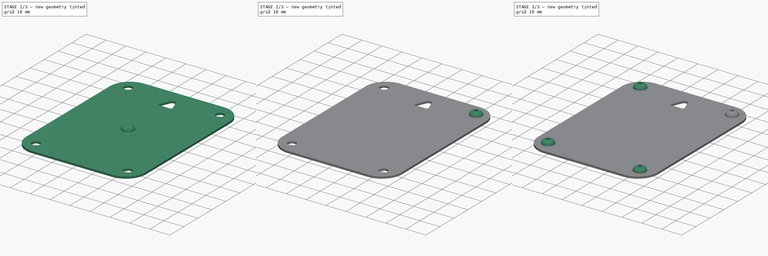
[diagram: build sequence overview — one tinted view per stage of 3, left to right]
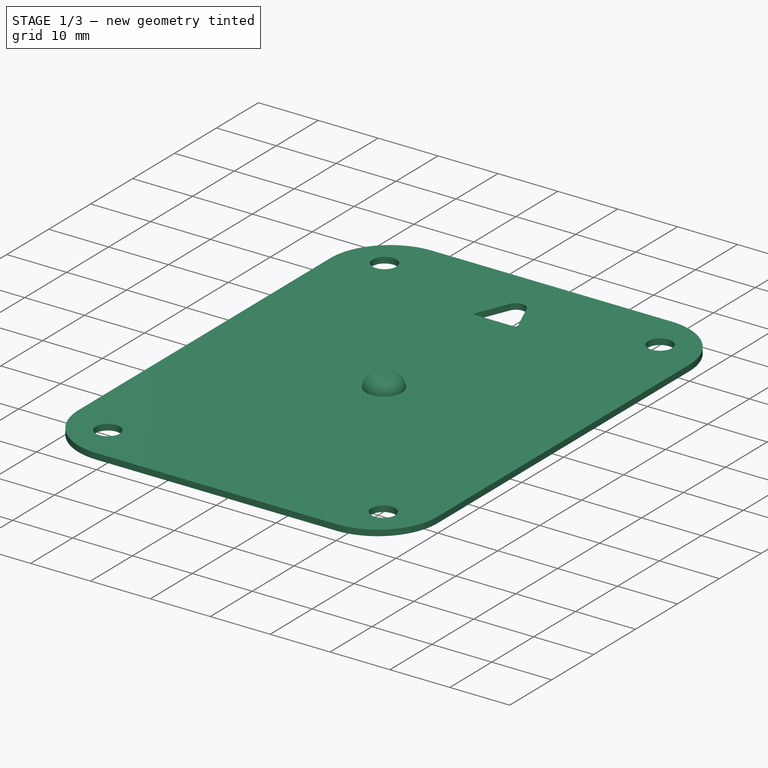
[diagram: stage 1 of 3 — iso view after this stage's code; geometry added in this stage tinted green]
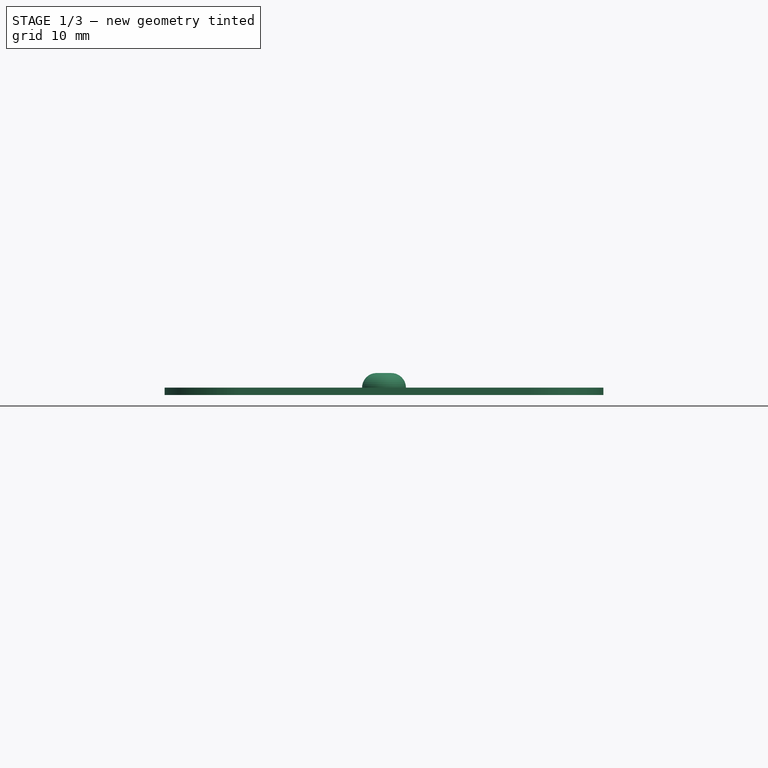
[diagram: stage 1 of 3 — front view after this stage's code; geometry added in this stage tinted green]
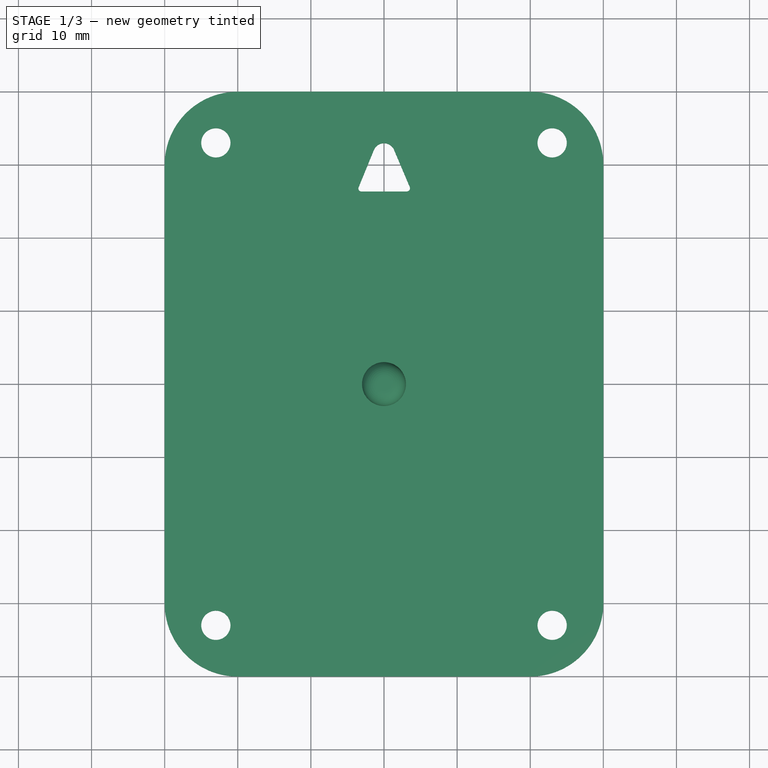
[diagram: stage 1 of 3 — top view after this stage's code; geometry added in this stage tinted green]
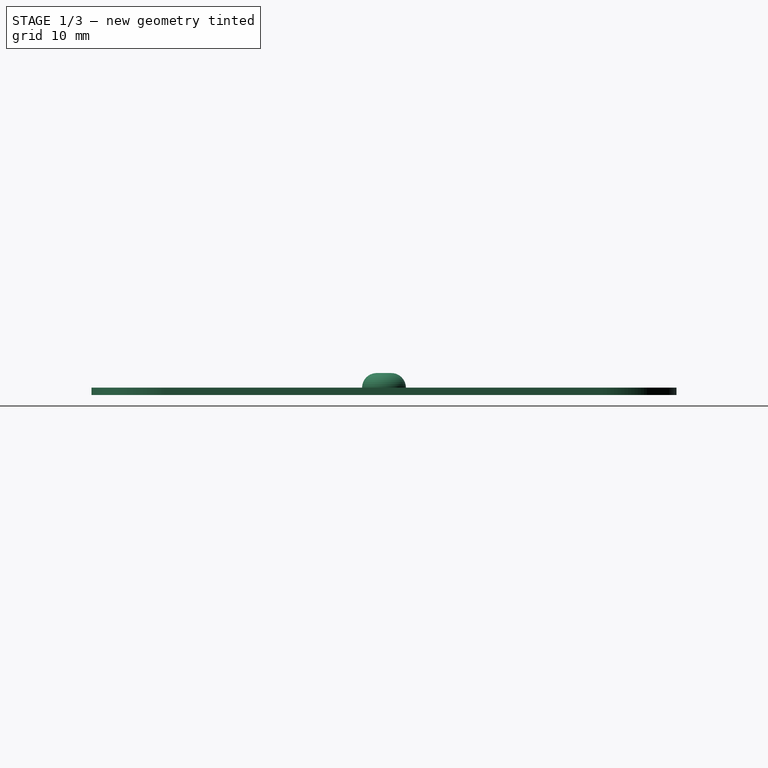
[diagram: stage 1 of 3 — right view after this stage's code; geometry added in this stage tinted green]
FCSTD DOCUMENT  (FreeCAD 0.16R)
Label: nexa-box
License: All rights reserved
LicenseURL: http://en.wikipedia.org/wiki/All_rights_reserved
objects: Sketcher::SketchObject×9, Part::FeaturePython×4, Part::Sweep×2, PartDesign::Pocket×2, App::DocumentObjectGroup×2, Part::Feature×1, PartDesign::Pad×1, Part::Revolution×1
note: 23 computed .brp shape members not serialized (recipe doc carries the construction recipe); baked Part::Feature solids carry a one-line shape summary decoded from their .brp

FEATURE [Part::Feature] Part__Feature  label="PCB"
  Placement = pos=(0,0,2) rot=(0,0,1;0rad)
  shape: bbox 50 x 70 x 1.6 mm, 442 faces (baked)
FEATURE [Sketcher::SketchObject] Sketch
  Placement = pos=(0,0,0) rot=(1,0,0;1.5708rad)
  sketch-geometry (3):
    g0: LineSegment StartX=-30 StartY=0 StartZ=0 EndX=-22.3817 EndY=23 EndZ=0
    g1: ArcOfCircle CenterX=-12.8889 CenterY=19.8557 CenterZ=0 NormalX=0 NormalY=0 NormalZ=1 Radius=10 StartAngle=1.60513 EndAngle=2.82173
    g2: LineSegment StartX=-13.2322 StartY=29.8498 StartZ=0 EndX=-10.9844 EndY=29.8498 EndZ=0
  constraints (6):
    c: Tangent(g0,g1) = 1.5708
    c: Radius(g1) = 10
    c: DistanceX(g0,g-1) = 30  'X'
    c: DistanceY(g0) = 23  'Constraint10'
    c: Coincident(g2,g1)  'Constraint7'
    c: Horizontal(g2)  'Constraint6'
FEATURE [Sketcher::SketchObject] Sketch001
  expr: Constraints[12] = Sketch.Constraints.X
  sketch-geometry (8):
    g0: LineSegment StartX=-5.35442 StartY=39.6004 StartZ=0 EndX=5.35442 EndY=39.6004 EndZ=0
    g1: LineSegment StartX=30 StartY=14.9548 StartZ=0 EndX=30 EndY=-14.9548 EndZ=0
    g2: LineSegment StartX=5.35442 StartY=-39.6004 StartZ=0 EndX=-5.35442 EndY=-39.6004 EndZ=0
    g3: LineSegment StartX=-30 StartY=-14.9548 StartZ=0 EndX=-30 EndY=14.9548 EndZ=0
    g4: ArcOfCircle CenterX=-5.35442 CenterY=14.9548 CenterZ=0 NormalX=0 NormalY=0 NormalZ=1 Radius=24.6456 StartAngle=1.5708 EndAngle=3.14159
    g5: ArcOfCircle CenterX=5.35442 CenterY=14.9548 CenterZ=0 NormalX=0 NormalY=0 NormalZ=1 Radius=24.6456 StartAngle=0 EndAngle=1.5708
    g6: ArcOfCircle CenterX=5.35442 CenterY=-14.9548 CenterZ=0 NormalX=0 NormalY=0 NormalZ=1 Radius=24.6456 StartAngle=4.71239 EndAngle=6.28319
    g7: ArcOfCircle CenterX=-5.35442 CenterY=-14.9548 CenterZ=0 NormalX=0 NormalY=0 NormalZ=1 Radius=24.6456 StartAngle=3.14159 EndAngle=4.71239
  constraints (18):
    c: Horizontal(g0)
    c: Horizontal(g2)
    c: Vertical(g1)
    c: Vertical(g3)
    c: Tangent(g0,g4) = 1.5708
    c: Tangent(g3,g4) = 1.5708
    c: Tangent(g0,g5) = 1.5708
    c: Tangent(g1,g5) = 1.5708
    c: Tangent(g1,g6) = 1.5708
    c: Tangent(g2,g6) = 1.5708
    c: Tangent(g2,g7) = 1.5708
    c: Tangent(g3,g7) = 1.5708
    c: DistanceX(g3,g-1) = 30
    c: Equal(g5,g4)
    c: Equal(g4,g7)
    c: Equal(g7,g6)
    c: Symmetric(g0,g0,g-2)
    c: Symmetric(g3,g3,g-1)
FEATURE [Part::Sweep] Sweep
  Frenet = true
  Sections = -> [Sketch]
  Solid = true
  Spine = -> Sketch001
  Transition = 1
FEATURE [Sketcher::SketchObject] Sketch002  label="BottomOutlineSketch"
  sketch-geometry (8):
    g0: LineSegment StartX=-20 StartY=40 StartZ=0 EndX=20 EndY=40 EndZ=0
    g1: LineSegment StartX=30 StartY=30 StartZ=0 EndX=30 EndY=-30 EndZ=0
    g2: LineSegment StartX=20 StartY=-40 StartZ=0 EndX=-20 EndY=-40 EndZ=0
    g3: LineSegment StartX=-30 StartY=-30 StartZ=0 EndX=-30 EndY=30 EndZ=0
    g4: ArcOfCircle CenterX=-20 CenterY=30 CenterZ=0 NormalX=0 NormalY=0 NormalZ=1 Radius=10 StartAngle=1.5708 EndAngle=3.14159
    g5: ArcOfCircle CenterX=20 CenterY=30 CenterZ=0 NormalX=0 NormalY=0 NormalZ=1 Radius=10 StartAngle=0 EndAngle=1.5708
    g6: ArcOfCircle CenterX=20 CenterY=-30 CenterZ=0 NormalX=0 NormalY=0 NormalZ=1 Radius=10 StartAngle=4.71239 EndAngle=6.28319
    g7: ArcOfCircle CenterX=-20 CenterY=-30 CenterZ=0 NormalX=0 NormalY=0 NormalZ=1 Radius=10 StartAngle=3.14159 EndAngle=4.71239
  constraints (20):
    c: Horizontal(g0)
    c: Horizontal(g2)
    c: Vertical(g1)
    c: Vertical(g3)
    c: Tangent(g0,g4) = 1.5708
    c: Tangent(g3,g4) = 1.5708
    c: Tangent(g0,g5) = 1.5708
    c: Tangent(g1,g5) = 1.5708
    c: Tangent(g1,g6) = 1.5708
    c: Tangent(g2,g6) = 1.5708
    c: Tangent(g2,g7) = 1.5708
    c: Tangent(g3,g7) = 1.5708
    c: Symmetric(g0,g0,g-2)
    c: Symmetric(g1,g1,g-1)
    c: Equal(g7,g6)
    c: Equal(g6,g5)
    c: Equal(g5,g4)
    c: DistanceX(g3,g-1) = 30  'XHalf'
    c: DistanceY(g-1,g0) = 40  'YHalf'
    c: Radius(g4) = 10  'CornerR'
FEATURE [PartDesign::Pad] Pad
  Length = 1
  Length2 = 100
  Reversed = true
  Sketch = -> Sketch002
  Type = 0
FEATURE [Sketcher::SketchObject] Sketch003
  Placement = pos=(0,0,0) rot=(1,0,0;1.5708rad)
  sketch-geometry (8):
    g0: ArcOfCircle CenterX=-1 CenterY=-1.72953 CenterZ=0 NormalX=0 NormalY=0 NormalZ=1 Radius=3.72953 StartAngle=1.5708 EndAngle=2.65938
    g1: ArcOfCircle CenterX=1 CenterY=-1.72953 CenterZ=0 NormalX=0 NormalY=0 NormalZ=1 Radius=3.72953 StartAngle=0.482212 EndAngle=1.5708
    g2: LineSegment StartX=-1 StartY=2 StartZ=0 EndX=1 EndY=2 EndZ=0
    g3: LineSegment StartX=-4.30426 StartY=0 StartZ=0 EndX=-2 EndY=0 EndZ=0
    g4: LineSegment StartX=-2 StartY=0 StartZ=0 EndX=-1 EndY=1 EndZ=0
    g5: LineSegment StartX=-1 StartY=1 StartZ=0 EndX=1 EndY=1 EndZ=0
    g6: LineSegment StartX=1 StartY=1 StartZ=0 EndX=2 EndY=0 EndZ=0
    g7: LineSegment StartX=2 StartY=0 StartZ=0 EndX=4.30426 EndY=0 EndZ=0
  constraints (25):
    c: PointOnObject(g0,g-1)
    c: Horizontal(g2)
    c: Equal(g0,g1)
    c: DistanceY(g0,g0) = 2
    c: Coincident(g0,g3)
    c: Coincident(g3,g4)
    c: Coincident(g4,g5)
    c: Horizontal(g5)
    c: Coincident(g5,g6)
    c: Coincident(g6,g7)
    c: Coincident(g7,g1)
    c: Horizontal(g7)
    c: Horizontal(g3)
    c: Equal(g4,g6)
    c: Angle(g4,g6) = 1.5708
    c: PointOnObject(g1,g-1)
    c: DistanceX(g5,g5) = 2
    c: Equal(g2,g5)
    c: Equal(g3,g7)
    c: DistanceY(g3,g4) = 1
    c: Symmetric(g4,g5,g-2)
    c: Tangent(g0,g2) = 1.5708
    c: Tangent(g1,g2) = 1.5708
    c: Symmetric(g0,g1,g-2)
    c: DistanceX(g3,g6) = 4  'HoleOpening'
FEATURE [Sketcher::SketchObject] Sketch004  label="MountingPadOutline"
  Placement = pos=(0,0,0) rot=(1,0,0;1.5708rad)
  sketch-geometry (6):
    g0: ArcOfCircle CenterX=-1 CenterY=0 CenterZ=0 NormalX=0 NormalY=0 NormalZ=1 Radius=2 StartAngle=1.5708 EndAngle=3.14159
    g1: LineSegment StartX=-1 StartY=2 StartZ=0 EndX=0 EndY=2 EndZ=0
    g2: LineSegment StartX=-3 StartY=0 StartZ=0 EndX=-2 EndY=0 EndZ=0
    g3: LineSegment StartX=-2 StartY=0 StartZ=0 EndX=-1 EndY=1 EndZ=0
    g4: LineSegment StartX=-1 StartY=1 StartZ=0 EndX=0 EndY=1 EndZ=0
    g5: LineSegment StartX=0 StartY=2 StartZ=0 EndX=0 EndY=1 EndZ=0
  constraints (19):
    c: PointOnObject(g0,g-1)
    c: Horizontal(g1)
    c: DistanceY(g0,g0) = 2
    c: Coincident(g0,g2)
    c: Coincident(g2,g3)
    c: Coincident(g3,g4)
    c: Horizontal(g4)
    c: Horizontal(g2)
    c: DistanceX(g4,g4) = 1
    c: Equal(g1,g4)
    c: DistanceY(g2,g3) = 1
    c: Tangent(g0,g1) = 1.5708
    c: PointOnObject(g4,g-2)
    c: PointOnObject(g1,g-2)
    c: Coincident(g5,g1)
    c: Coincident(g5,g4)
    c: Angle(g3,g-2) = 0.785398
    c: DistanceX(g2,g-1) = 2  'ScrewHeadRadius'
    c: DistanceX(g2,g2) = 1
FEATURE [Part::Revolution] Revolve  label="MountingPadRevolve"
  Angle = 360
  Axis = (0,0,1)
  Base = (0,0,0)
  Solid = true
  Source = -> Sketch004
FEATURE [App::DocumentObjectGroup] Group001  label="MountingPads"
  Group = -> [Clone,Clone001,Clone002,Clone003]
FEATURE [Sketcher::SketchObject] Sketch007
  Support = -> Pad [Face9]
  expr: Constraints[8] = PcbMeasurements.Constraints.HoleX
  expr: Constraints[7] = PcbMeasurements.Constraints.HoleY
  expr: Constraints[6] = MountingPadOutline.Constraints.ScrewHeadRadius
  sketch-geometry (10):
    g0: Circle CenterX=-23 CenterY=33 CenterZ=0 NormalX=0 NormalY=0 NormalZ=1 Radius=2
    g1: Circle CenterX=23 CenterY=33 CenterZ=0 NormalX=0 NormalY=0 NormalZ=1 Radius=2
    g2: Circle CenterX=23 CenterY=-33 CenterZ=0 NormalX=0 NormalY=0 NormalZ=1 Radius=2
    g3: Circle CenterX=-23 CenterY=-33 CenterZ=0 NormalX=0 NormalY=0 NormalZ=1 Radius=2
    g4: LineSegment StartX=-3.47919 StartY=26.9075 StartZ=0 EndX=-1.38806 EndY=32.0124 EndZ=0
    g5: LineSegment StartX=1.3812 StartY=32.0289 StartZ=0 EndX=3.52081 EndY=26.9775 EndZ=0
    g6: LineSegment StartX=3.10453 StartY=26.3491 StartZ=0 EndX=-3.10453 EndY=26.3491 EndZ=0
    g7: ArcOfCircle CenterX=0 CenterY=31.4438 CenterZ=0 NormalX=0 NormalY=0 NormalZ=1 Radius=1.5 StartAngle=0.400663 EndAngle=2.75281
    g8: ArcOfCircle CenterX=3.10453 CenterY=26.8012 CenterZ=0 NormalX=0 NormalY=0 NormalZ=1 Radius=0.452082 StartAngle=4.71239 EndAngle=6.68385
    g9: ArcOfCircle CenterX=-3.10453 CenterY=26.754 CenterZ=0 NormalX=0 NormalY=0 NormalZ=1 Radius=0.404868 StartAngle=2.75281 EndAngle=4.71239
  constraints (20):
    c: Symmetric(g0,g1,g-2)
    c: Symmetric(g0,g3,g-1)
    c: Symmetric(g3,g2,g-2)
    c: Equal(g0,g1)
    c: Equal(g1,g2)
    c: Equal(g2,g3)
    c: Radius(g0) = 2
    c: DistanceY(g0) = 33
    c: DistanceX(g0,g-1) = 23
    c: Horizontal(g6)
    c: Tangent(g4,g7) = 1.5708
    c: Tangent(g5,g7) = 1.5708
    c: PointOnObject(g7,g-2)
    c: Radius(g7) = 1.5
    c: Tangent(g5,g8) = 1.5708
    c: Tangent(g6,g8) = 1.5708
    c: Tangent(g4,g9) = 1.5708
    c: Tangent(g6,g9) = 1.5708
    c: Symmetric(g6,g6,g-2)
    c: DistanceX(g4,g5) = 7
FEATURE [PartDesign::Pocket] Pocket001
  Length = 5
  Sketch = -> Sketch007
  Type = 1
FEATURE [Sketcher::SketchObject] Sketch008
  Placement = pos=(0,0,0) rot=(1,0,0;1.5708rad)
  sketch-geometry (3):
    g0: LineSegment StartX=-30 StartY=0 StartZ=0 EndX=-24.6772 EndY=35.9641 EndZ=0
    g1: LineSegment [constr] StartX=-20 StartY=40 StartZ=0 EndX=-16.0698 EndY=40 EndZ=0
    g2: ArcOfCircle CenterX=-20 CenterY=35.2719 CenterZ=0 NormalX=0 NormalY=0 NormalZ=1 Radius=4.72814 StartAngle=1.5708 EndAngle=2.99466
  constraints (7):
    c: PointOnObject(g0,g-1)
    c: Tangent(g0,g2) = 1.5708
    c: Tangent(g1,g2) = 1.5708
    c: DistanceX(g0,g-1) = 30
    c: Horizontal(g1)
    c: DistanceY(g-1,g1) = 40
    c: DistanceX(g1,g-1) = 20
FEATURE [Part::Sweep] Sweep001
  Frenet = false
  Sections = -> [Sketch008]
  Solid = false
  Spine = -> Sketch002
  Transition = 1
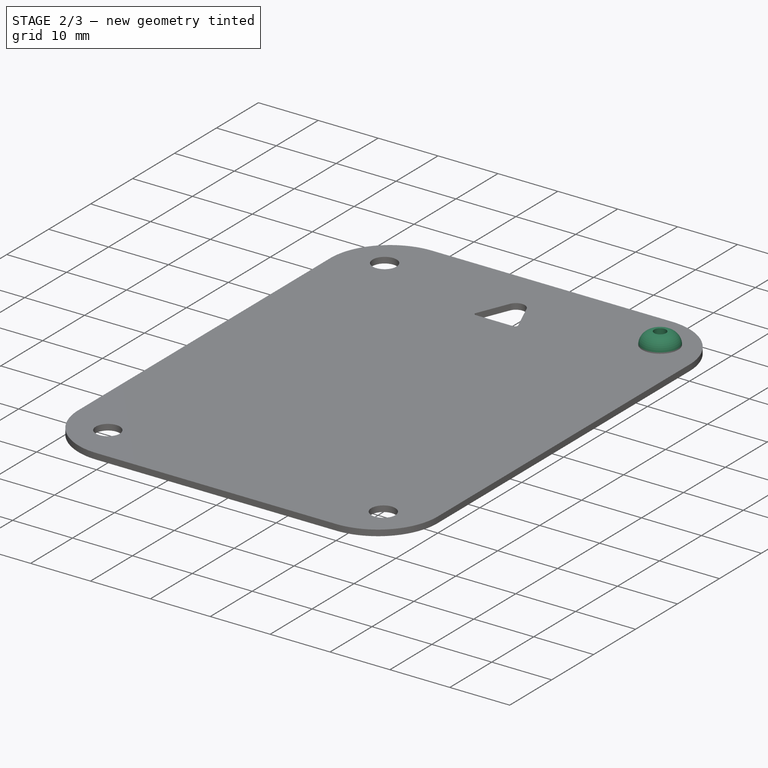
[diagram: stage 2 of 3 — iso view after this stage's code; geometry added in this stage tinted green]
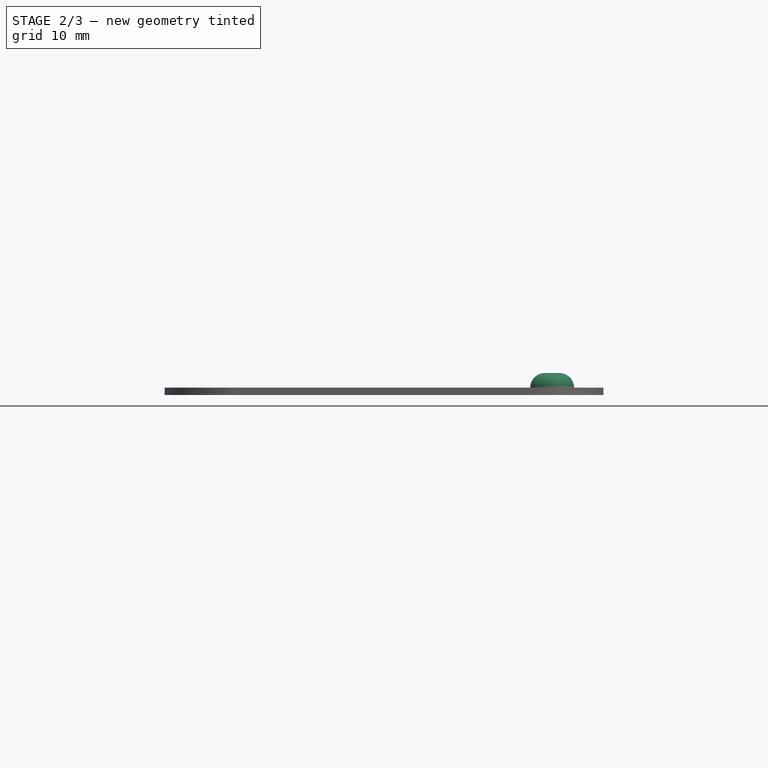
[diagram: stage 2 of 3 — front view after this stage's code; geometry added in this stage tinted green]
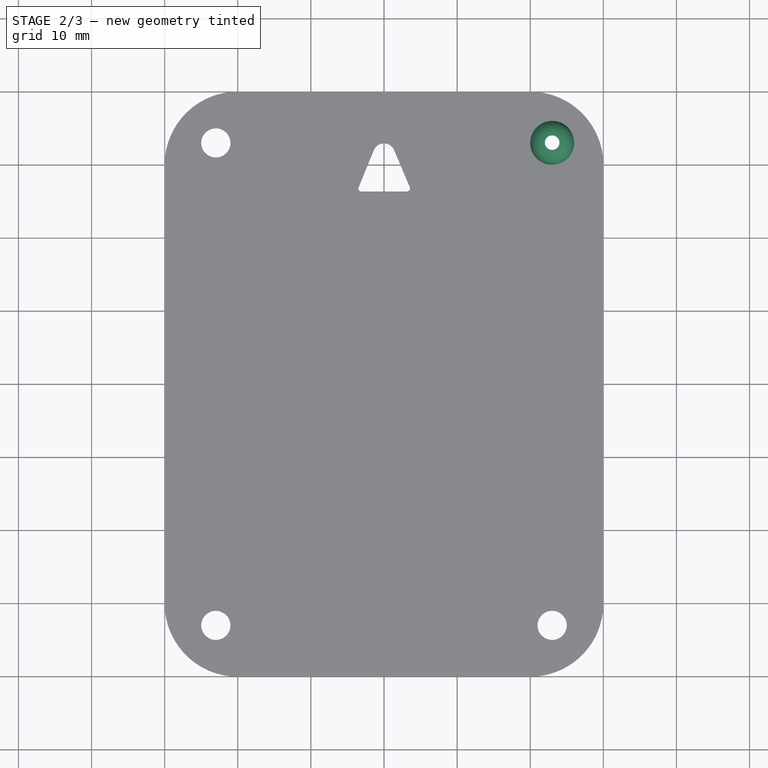
[diagram: stage 2 of 3 — top view after this stage's code; geometry added in this stage tinted green]
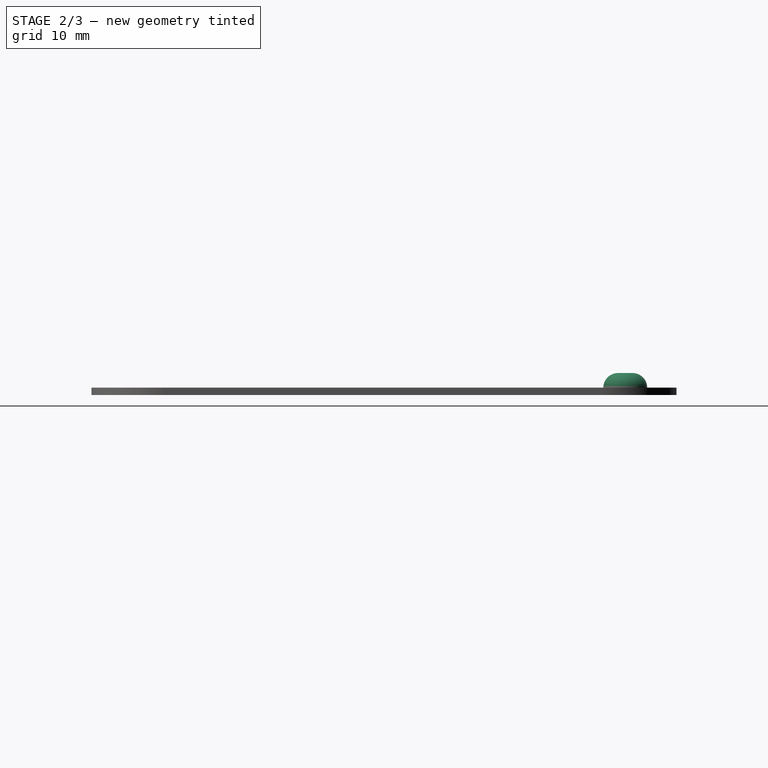
[diagram: stage 2 of 3 — right view after this stage's code; geometry added in this stage tinted green]
FEATURE [Sketcher::SketchObject] Sketch005
  ExternalGeometry = -> [Revolve]
  Placement = pos=(0,0,1) rot=(1,0,0;3.14159rad)
  Support = -> Revolve [Face4]
  sketch-geometry (1):
    g0: Circle CenterX=0 CenterY=0 CenterZ=0 NormalX=0 NormalY=0 NormalZ=1 Radius=1
  constraints (2):
    c: Coincident(g0,g-3)
    c: Equal(g-3,g0)
FEATURE [PartDesign::Pocket] Pocket  label="MountingPad"
  Length = 5
  Sketch = -> Sketch005
  Type = 1
FEATURE [Part::FeaturePython] Clone003  label="BottomRightMountingPad"  # Draft clone (typed FeaturePython)
  Objects = -> [Pocket]
  Placement = pos=(23,33,0) rot=(0,0,1;0rad)
  Scale = (1,1,1)
  expr: Placement.Base.y = PcbMeasurements.Constraints.HoleY
  expr: Placement.Base.x = PcbMeasurements.Constraints.HoleX
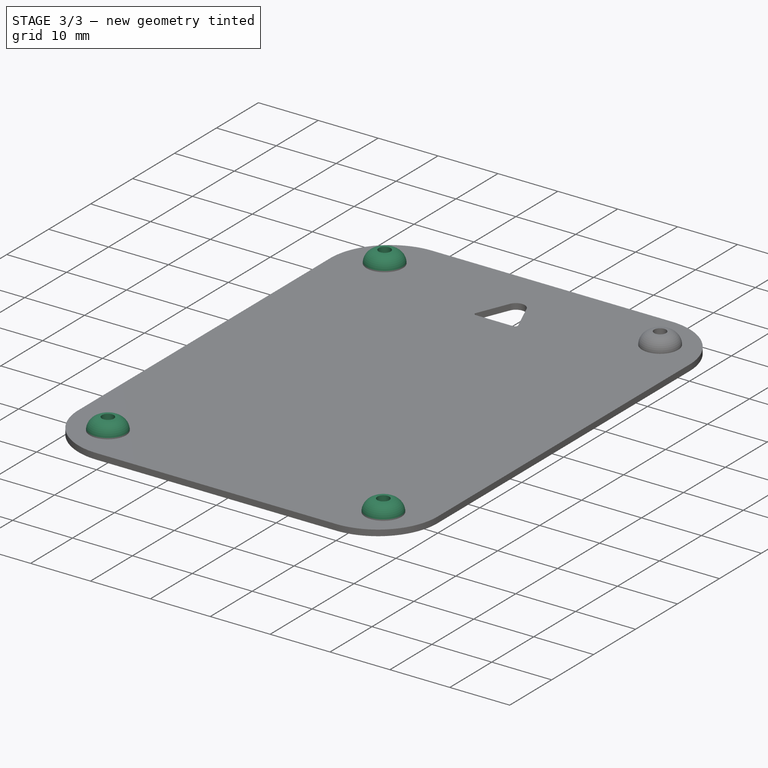
[diagram: stage 3 of 3 — iso view after this stage's code; geometry added in this stage tinted green]
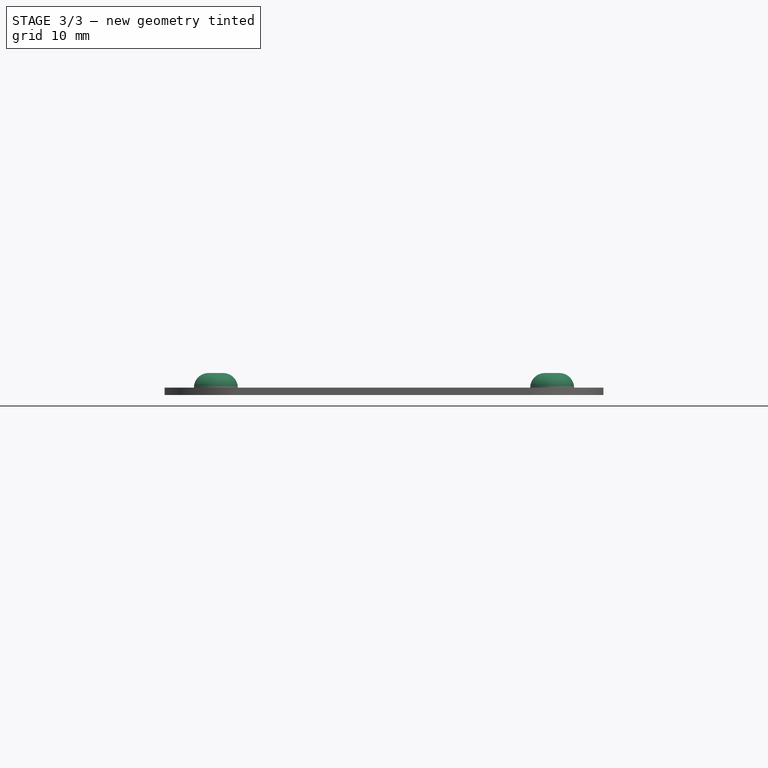
[diagram: stage 3 of 3 — front view after this stage's code; geometry added in this stage tinted green]
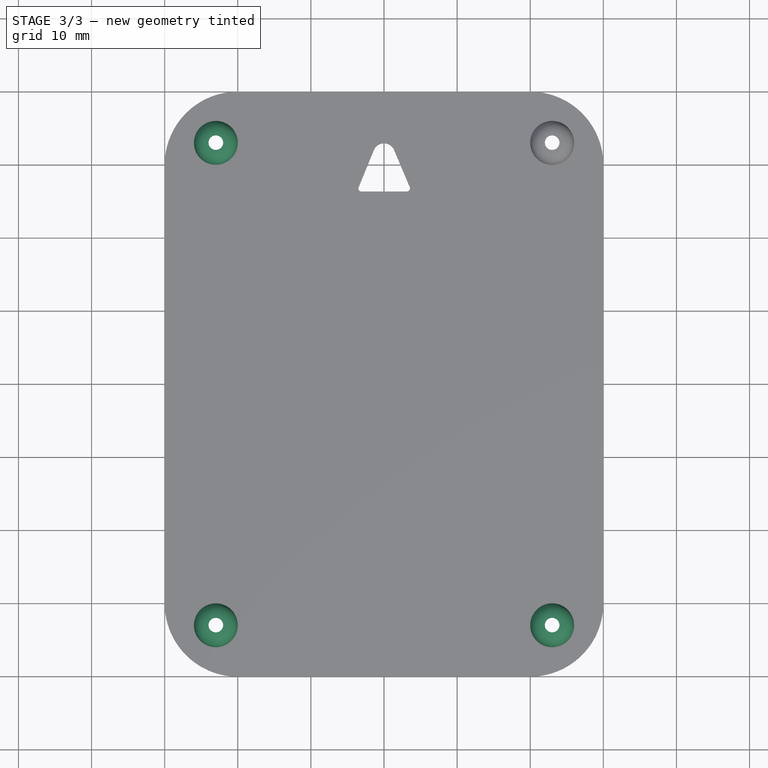
[diagram: stage 3 of 3 — top view after this stage's code; geometry added in this stage tinted green]
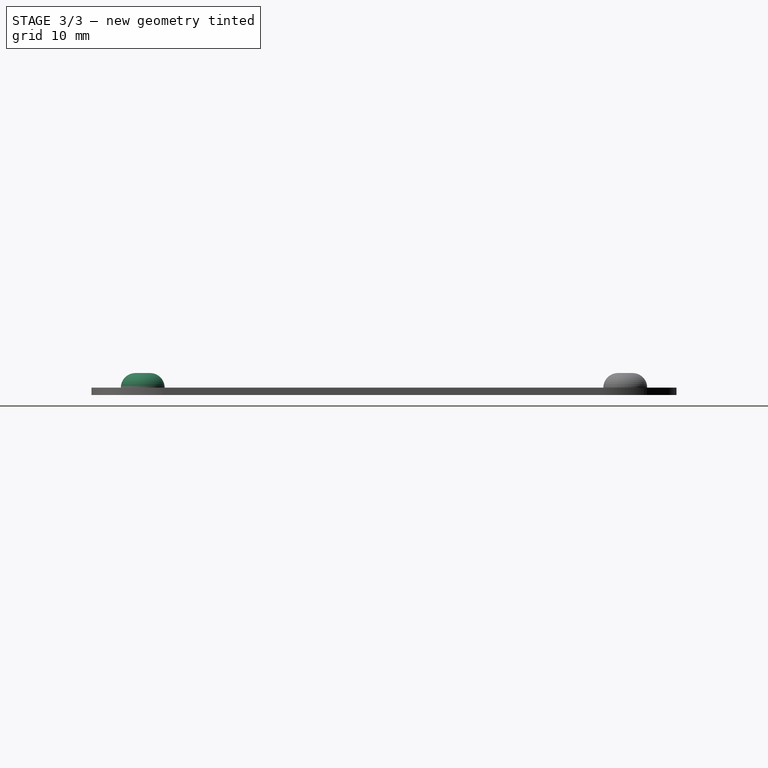
[diagram: stage 3 of 3 — right view after this stage's code; geometry added in this stage tinted green]
FEATURE [Part::FeaturePython] Clone  label="TopLeftMountingPad"  # Draft clone (typed FeaturePython)
  Objects = -> [Pocket]
  Placement = pos=(-23,-33,0) rot=(0,0,1;0rad)
  Scale = (1,1,1)
  expr: Placement.Base.y = -PcbMeasurements.Constraints.HoleY
  expr: Placement.Base.x = -PcbMeasurements.Constraints.HoleX
FEATURE [Sketcher::SketchObject] Sketch006  label="PcbMeasurements"
  ExternalGeometry = -> [Part__Feature]
  Placement = pos=(0,0,3.6) rot=(0,0,1;0rad)
  Support = -> Part__Feature [Face5]
  constraints (3):
    c: DistanceX(g-3,g-1) = 23  'HoleX'
    c: DistanceY(g-1,g-3) = 33  'HoleY'
    c: Radius(g-3) = 1  'HoleRadius'
FEATURE [App::DocumentObjectGroup] Group  label="Support"
  Group = -> [Sketch003,Revolve,Pocket,Sketch006]
FEATURE [Part::FeaturePython] Clone001  label="TopRightMountingPad"  # Draft clone (typed FeaturePython)
  Objects = -> [Pocket]
  Placement = pos=(23,-33,0) rot=(0,0,1;0rad)
  Scale = (1,1,1)
  expr: Placement.Base.y = -PcbMeasurements.Constraints.HoleY
  expr: Placement.Base.x = PcbMeasurements.Constraints.HoleX
FEATURE [Part::FeaturePython] Clone002  label="BottomLeftMountingPad"  # Draft clone (typed FeaturePython)
  Objects = -> [Pocket]
  Placement = pos=(-23,33,0) rot=(0,0,1;0rad)
  Scale = (1,1,1)
  expr: Placement.Base.y = PcbMeasurements.Constraints.HoleY
  expr: Placement.Base.x = -PcbMeasurements.Constraints.HoleX
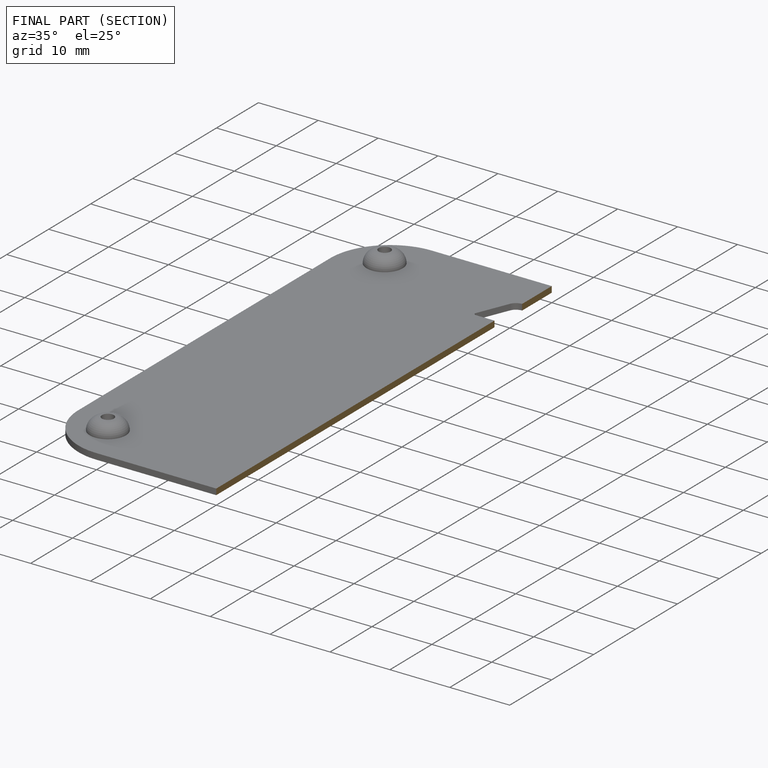
[diagram: finished part — half-section view (interior)]
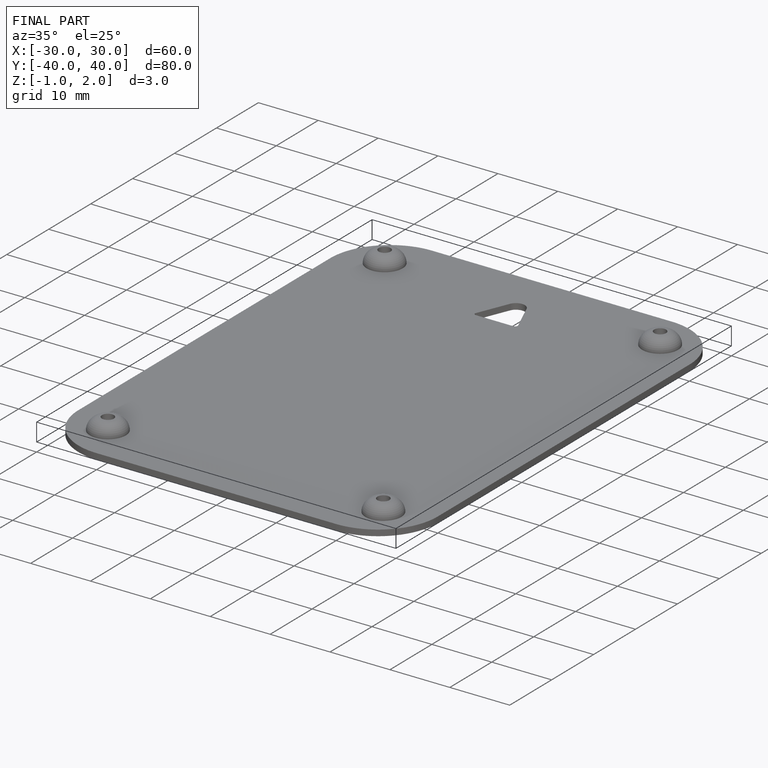
[diagram: finished part — iso view with bounding-box wireframe]
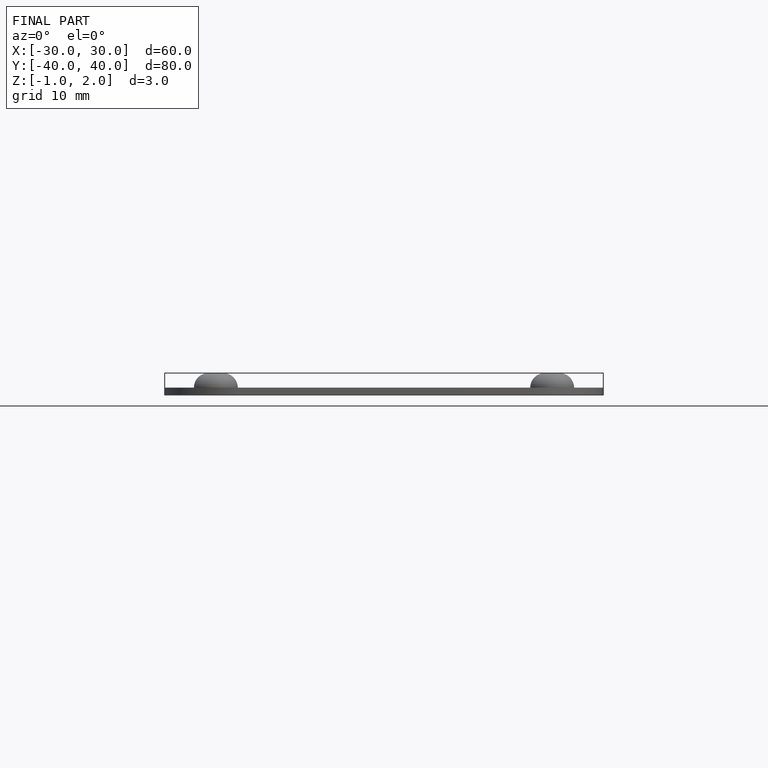
[diagram: finished part — front view with bounding-box wireframe]
